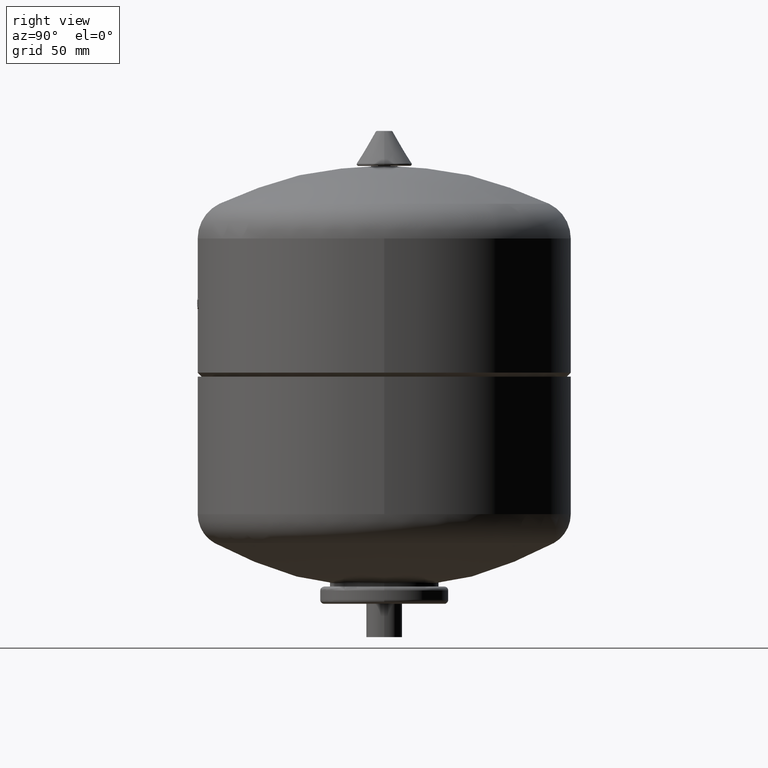
[diagram: clean part render]
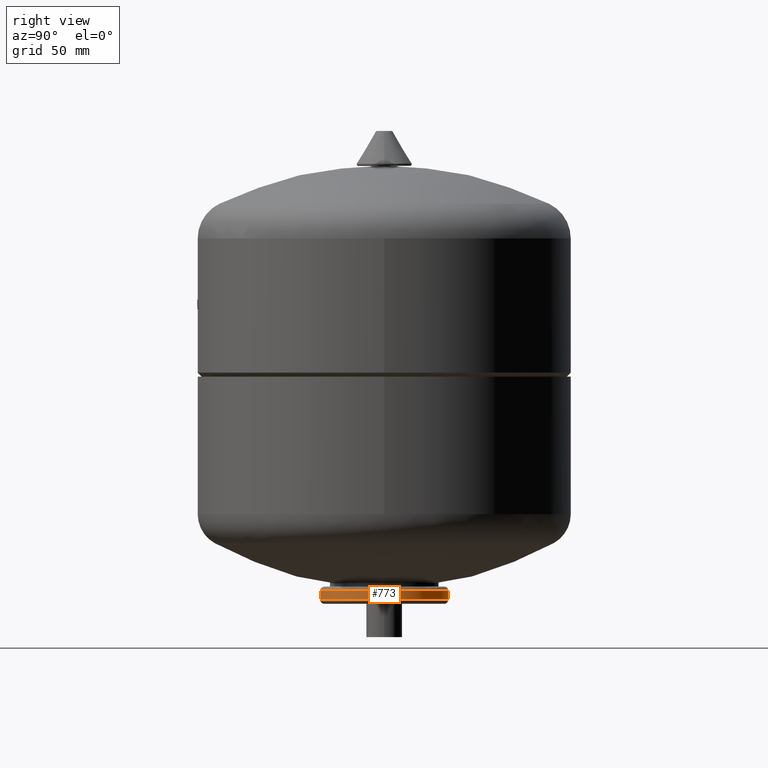
[diagram: same view with one face highlighted and labeled with its STEP entity id]
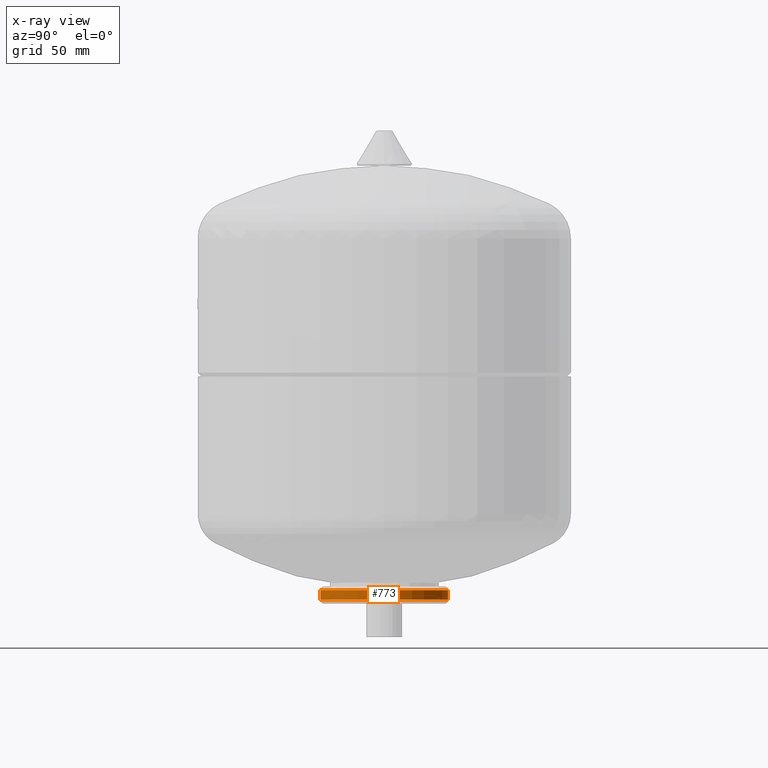
[diagram: x-ray of the same camera — body ghosted, the highlighted face saturated]
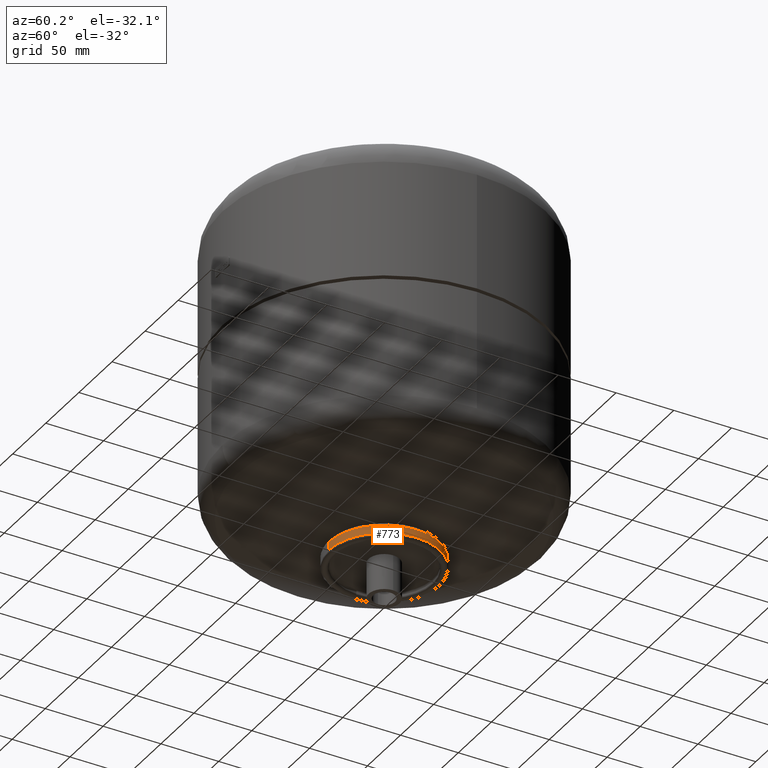
[diagram: same view with one face highlighted and labeled with its STEP entity id]
A machine part, right view. The second image highlights one B-rep face of the part: STEP entity #773.
The next image is the same camera in x-ray: the body ghosted, the highlighted face saturated — about 0% of this face is hidden behind the body in this view.
A second angle (auxiliary view) of the same face is appended — the face is thin or edge-on in the first view.
In plain terms, the highlighted cylindrical surface (partial cylindrical patch) has radius 48 mm, axis along (0, -0, -1).
Its self-contained STEP definition (entity closure, byte-faithful):
#131=CARTESIAN_POINT('',(0.0,48.0,27.999999999999993));
#132=VERTEX_POINT('',#131);
#133=CARTESIAN_POINT('',(0.0,48.0,35.000000000000007));
#134=VERTEX_POINT('',#133);
#135=CARTESIAN_POINT('',(0.0,48.0,27.999999999999993));
#136=DIRECTION('',(0.0,0.0,1.0));
#137=VECTOR('',#136,7.000000000000014);
#138=LINE('',#135,#137);
#139=EDGE_CURVE('',#132,#134,#138,.T.);
#150=CARTESIAN_POINT('',(-5.878110E-015,-48.000000000000007,28.0));
#151=VERTEX_POINT('',#150);
#159=CARTESIAN_POINT('',(-5.878110E-015,-48.000000000000007,35.000000000000014));
#160=VERTEX_POINT('',#159);
#161=CARTESIAN_POINT('',(-5.878110E-015,-48.000000000000007,28.0));
#162=DIRECTION('',(0.0,0.0,1.0));
#163=VECTOR('',#162,7.000000000000014);
#164=LINE('',#161,#163);
#165=EDGE_CURVE('',#151,#160,#164,.T.);
#243=CARTESIAN_POINT('',(48.000000000000007,-5.878110E-015,35.000000000000007));
#244=VERTEX_POINT('',#243);
#245=CARTESIAN_POINT('',(0.0,0.0,35.000000000000007));
#246=DIRECTION('',(0.0,0.0,-1.0));
#247=DIRECTION('',(0.0,1.0,0.0));
#248=AXIS2_PLACEMENT_3D('',#245,#246,#247);
#249=CIRCLE('',#248,48.000000000000007);
#250=EDGE_CURVE('',#244,#160,#249,.T.);
#484=CARTESIAN_POINT('',(48.000000000000007,-5.878110E-015,28.0));
#485=VERTEX_POINT('',#484);
#493=CARTESIAN_POINT('',(0.0,0.0,28.0));
#494=DIRECTION('',(0.0,0.0,-1.0));
#495=DIRECTION('',(0.0,1.0,0.0));
#496=AXIS2_PLACEMENT_3D('',#493,#494,#495);
#497=CIRCLE('',#496,48.000000000000007);
#498=EDGE_CURVE('',#485,#151,#497,.T.);
#554=CARTESIAN_POINT('',(0.0,0.0,28.0));
#555=DIRECTION('',(0.0,0.0,-1.0));
#556=DIRECTION('',(0.0,1.0,0.0));
#557=AXIS2_PLACEMENT_3D('',#554,#555,#556);
#558=CIRCLE('',#557,48.000000000000007);
#559=EDGE_CURVE('',#132,#485,#558,.T.);
#721=CARTESIAN_POINT('',(0.0,0.0,35.000000000000007));
#722=DIRECTION('',(0.0,0.0,-1.0));
#723=DIRECTION('',(0.0,1.0,0.0));
#724=AXIS2_PLACEMENT_3D('',#721,#722,#723);
#725=CIRCLE('',#724,48.000000000000007);
#726=EDGE_CURVE('',#134,#244,#725,.T.);
#760=CARTESIAN_POINT('',(0.0,0.0,32.0));
#761=DIRECTION('',(0.0,-1.045403E-016,-1.0));
#762=DIRECTION('',(0.0,1.0,0.0));
#763=AXIS2_PLACEMENT_3D('',#760,#761,#762);
#764=CYLINDRICAL_SURFACE('',#763,48.000000000000007);
#765=ORIENTED_EDGE('',*,*,#139,.T.);
#766=ORIENTED_EDGE('',*,*,#726,.T.);
#767=ORIENTED_EDGE('',*,*,#250,.T.);
#768=ORIENTED_EDGE('',*,*,#165,.F.);
#769=ORIENTED_EDGE('',*,*,#498,.F.);
#770=ORIENTED_EDGE('',*,*,#559,.F.);
#771=EDGE_LOOP('',(#765,#766,#767,#768,#769,#770));
#772=FACE_OUTER_BOUND('',#771,.T.);
#773=ADVANCED_FACE('',(#772),#764,.T.);